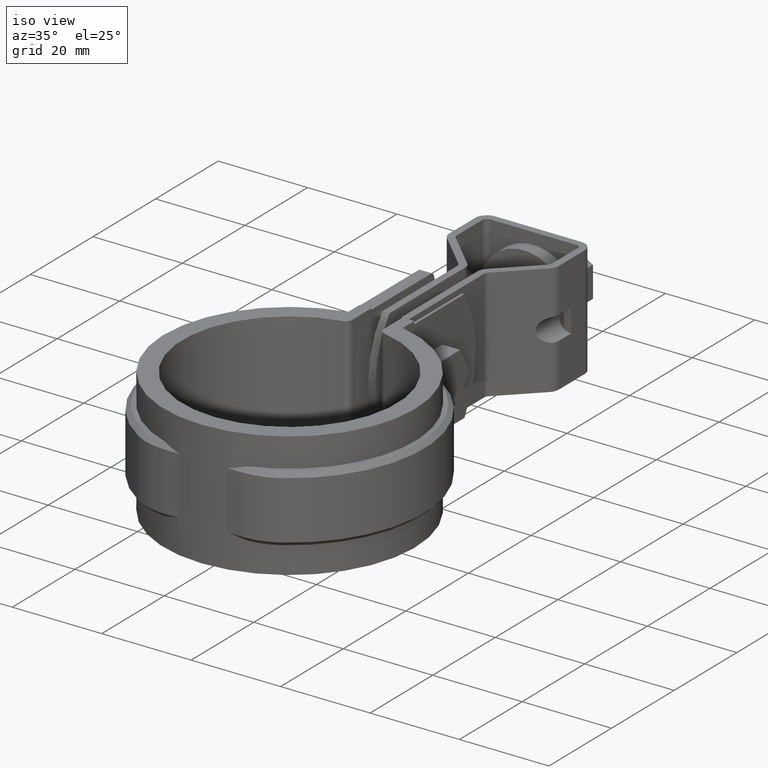
[diagram: clean part render]
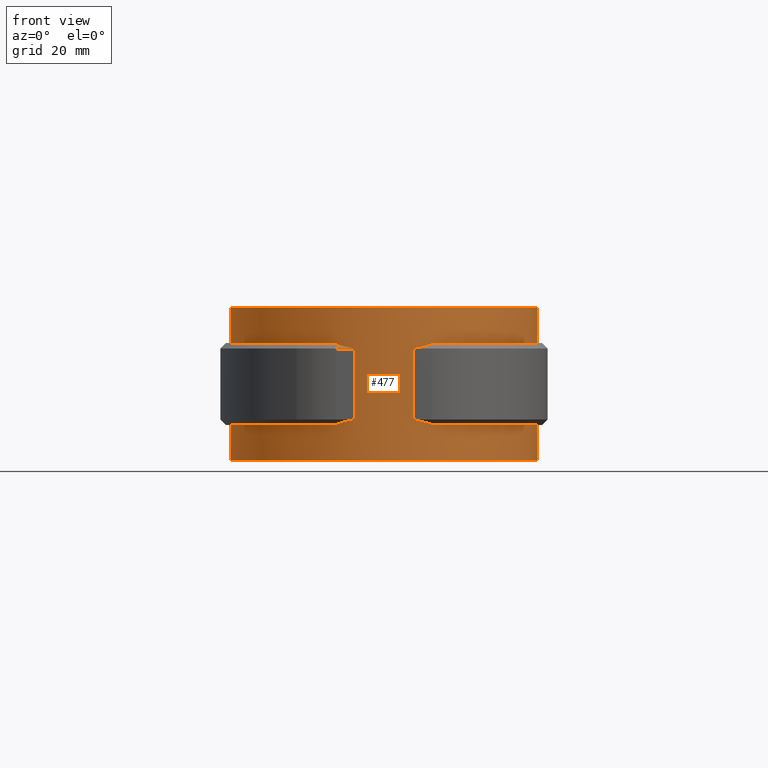
[diagram: tour spotlight — one face highlighted and labeled with its STEP entity id]
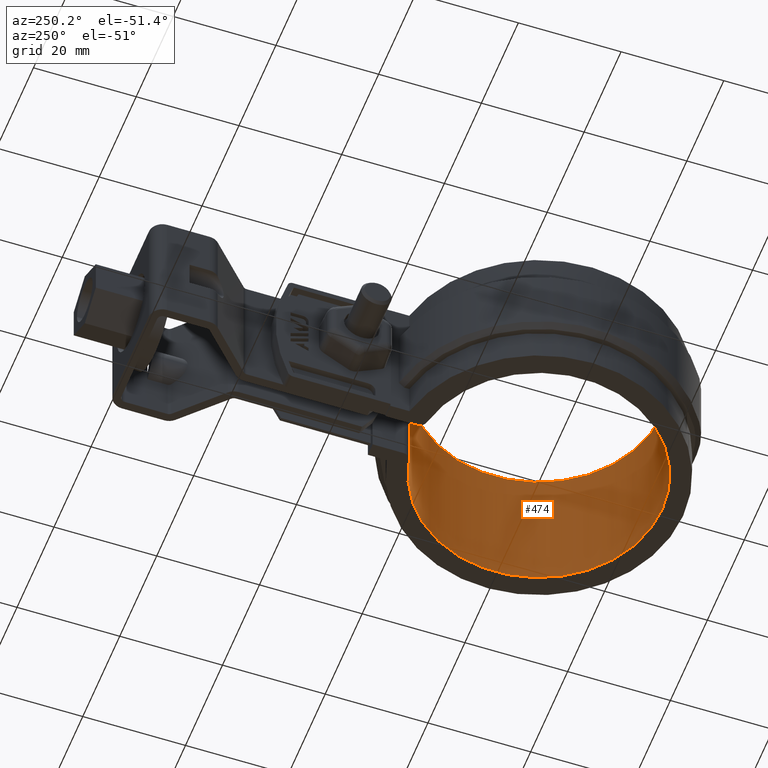
[diagram: tour spotlight — one face highlighted and labeled with its STEP entity id]
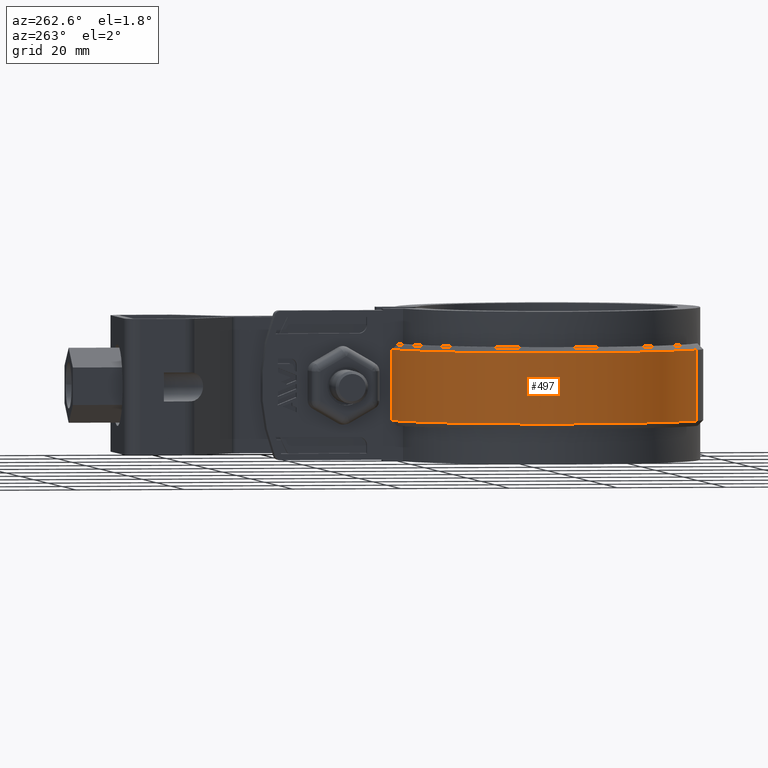
[diagram: tour spotlight — one face highlighted and labeled with its STEP entity id]
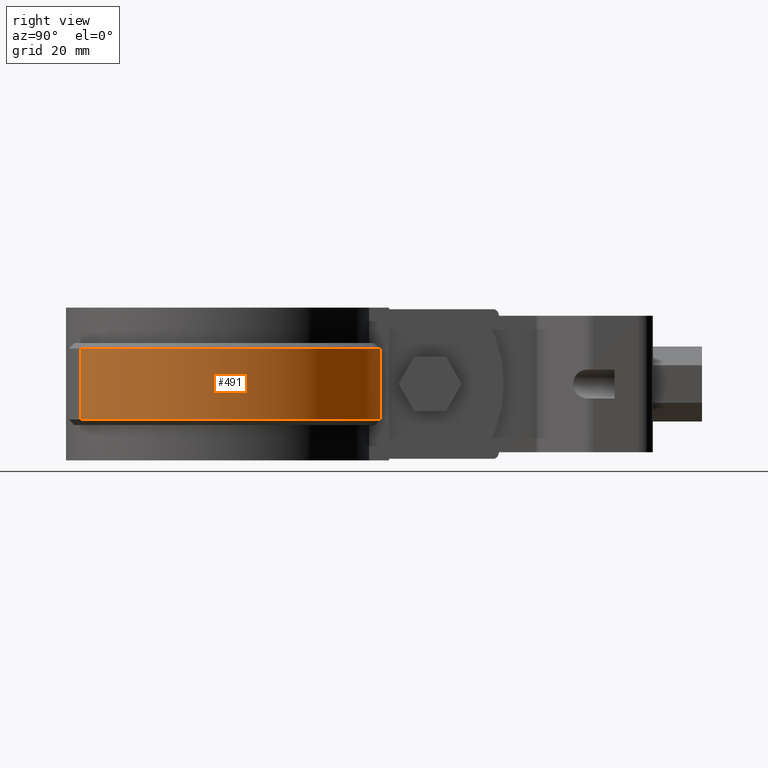
[diagram: tour spotlight — one face highlighted and labeled with its STEP entity id]
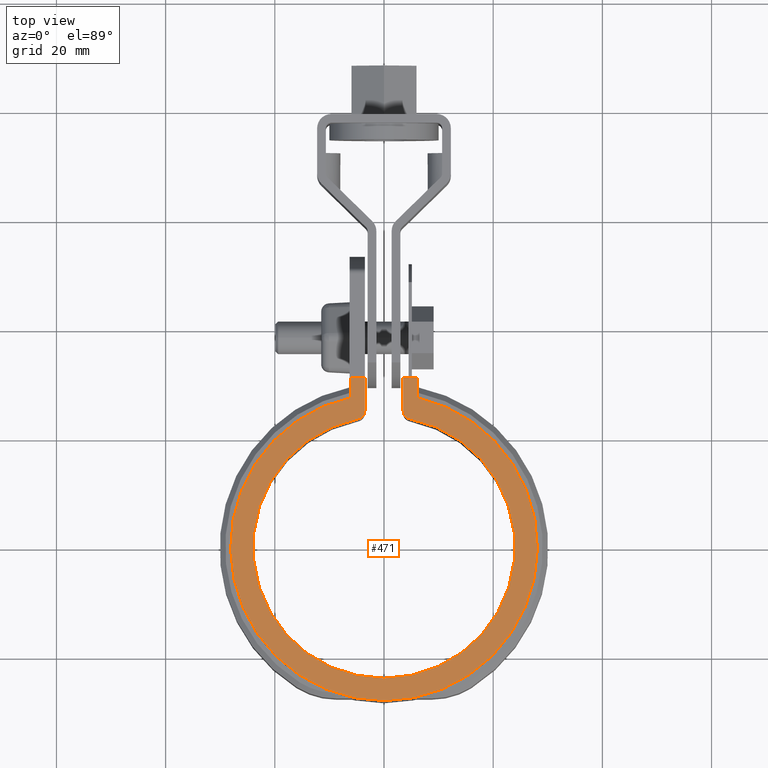
[diagram: tour spotlight — one face highlighted and labeled with its STEP entity id]
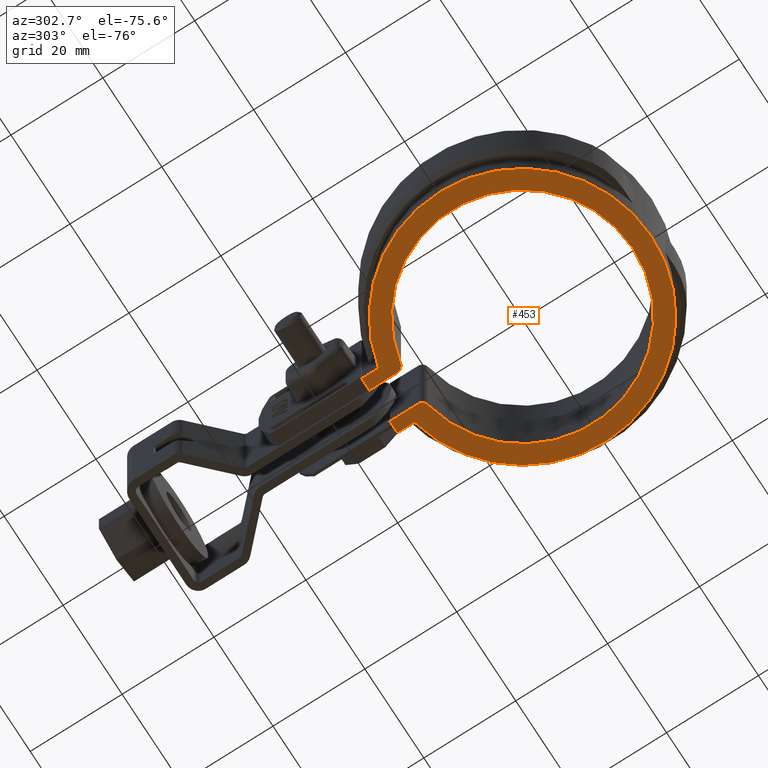
[diagram: tour spotlight — one face highlighted and labeled with its STEP entity id]
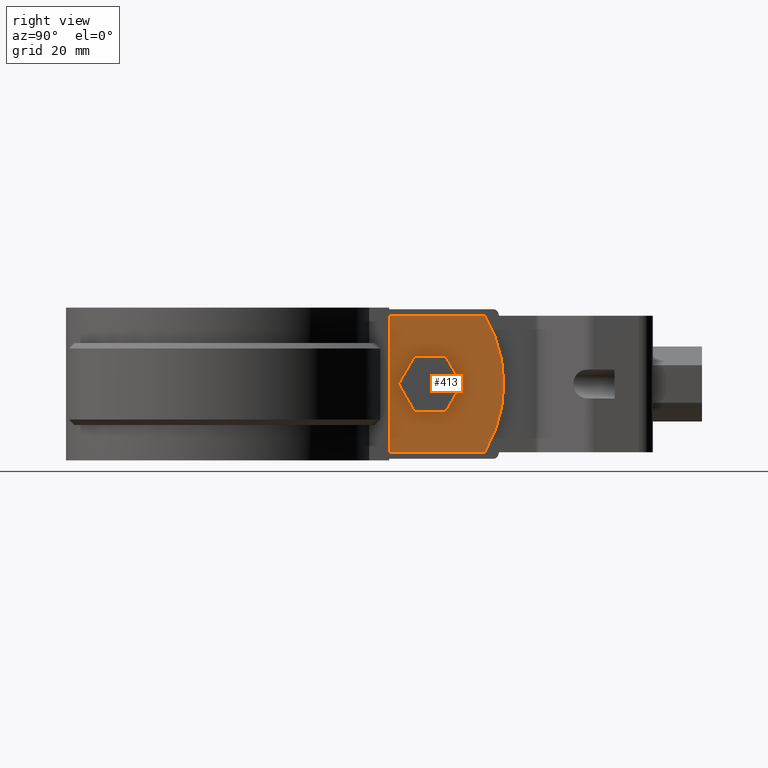
[diagram: tour spotlight — one face highlighted and labeled with its STEP entity id]
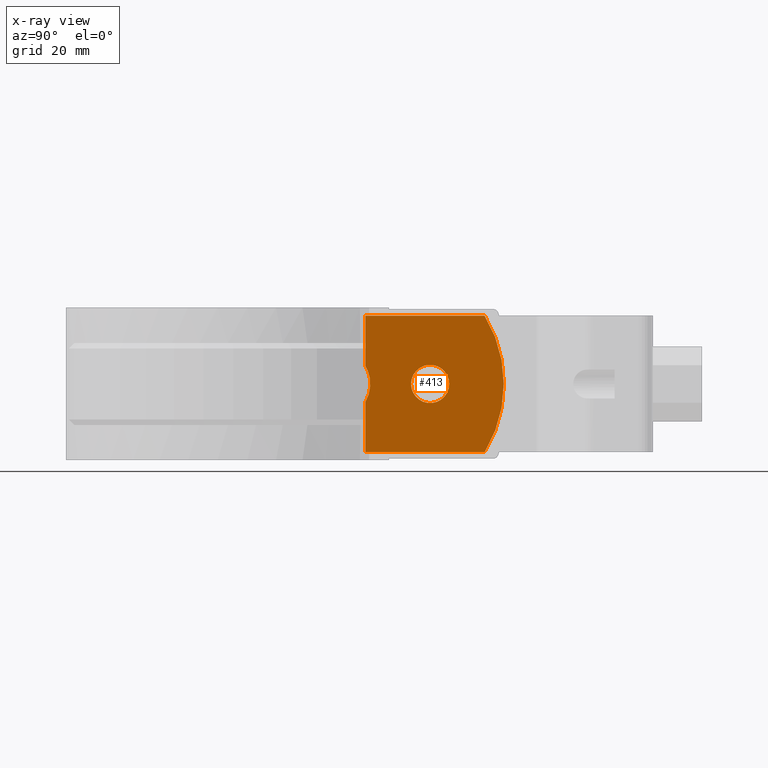
[diagram: x-ray of the same camera — body ghosted, this tour face saturated]
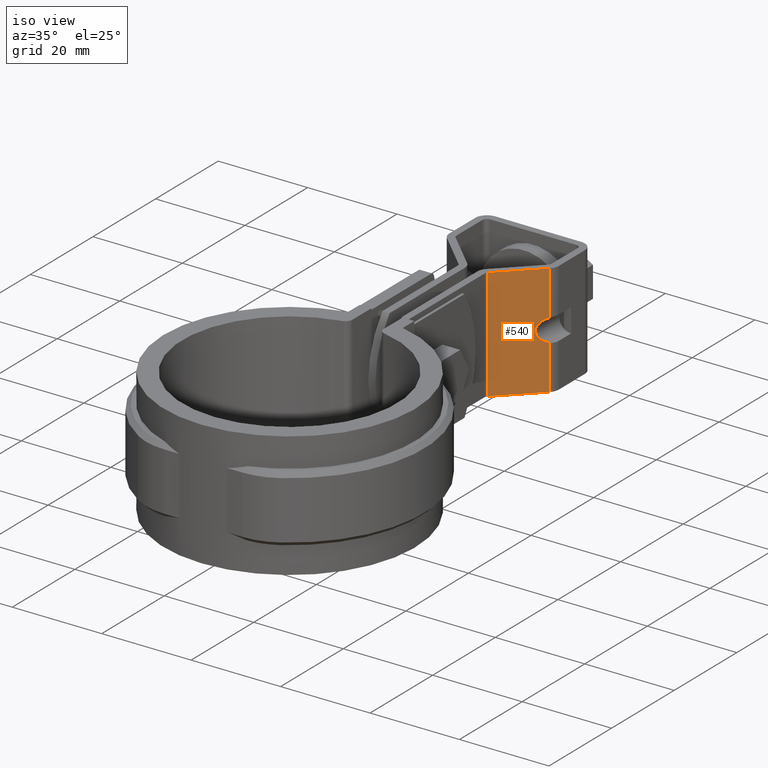
[diagram: tour spotlight — one face highlighted and labeled with its STEP entity id]
A machine part: a face-by-face anatomy tour. The part has 348 B-rep faces; the first image is the clean iso view, then the 8 largest visible faces are spotlighted one at a time (largest first), each with its STEP entity span.

Face 1 — front view, entity #477. In plain terms, the highlighted cylindrical surface (partial cylindrical patch) has radius 28.095 mm, axis along (0, 0, -1).
Definition (entity closure, byte-faithful):
#477 = ADVANCED_FACE( '', ( #948 ), #949, .T. );
#948 = FACE_OUTER_BOUND( '', #2292, .T. );
#949 = CYLINDRICAL_SURFACE( '', #2293, 28.0950000000000 );
#2292 = EDGE_LOOP( '', ( #4981, #4982, #4983, #4984, #4985, #4986, #4987, #4988, #4989, #4990, #4991, #4992, #4993, #4994, #4995, #4996, #4997, #4998, #4999, #5000 ) );
#2293 = AXIS2_PLACEMENT_3D( '', #5001, #5002, #5003 );
#4981 = ORIENTED_EDGE( '', *, *, #7275, .F. );
#4982 = ORIENTED_EDGE( '', *, *, #7276, .T. );
#4983 = ORIENTED_EDGE( '', *, *, #7274, .T. );
#4984 = ORIENTED_EDGE( '', *, *, #7277, .F. );
#4985 = ORIENTED_EDGE( '', *, *, #7278, .T. );
#4986 = ORIENTED_EDGE( '', *, *, #7279, .T. );
#4987 = ORIENTED_EDGE( '', *, *, #7280, .T. );
#4988 = ORIENTED_EDGE( '', *, *, #7263, .F. );
#4989 = ORIENTED_EDGE( '', *, *, #7233, .T. );
#4990 = ORIENTED_EDGE( '', *, *, #7262, .T. );
#4991 = ORIENTED_EDGE( '', *, *, #7281, .F. );
#4992 = ORIENTED_EDGE( '', *, *, #7282, .T. );
#4993 = ORIENTED_EDGE( '', *, *, #7283, .T. );
#4994 = ORIENTED_EDGE( '', *, *, #7284, .T. );
#4995 = ORIENTED_EDGE( '', *, *, #7285, .T. );
#4996 = ORIENTED_EDGE( '', *, *, #7286, .T. );
#4997 = ORIENTED_EDGE( '', *, *, #7287, .T. );
#4998 = ORIENTED_EDGE( '', *, *, #7256, .T. );
#4999 = ORIENTED_EDGE( '', *, *, #7251, .F. );
#5000 = ORIENTED_EDGE( '', *, *, #7269, .F. );
#5001 = CARTESIAN_POINT( '', ( 0.000000000000000, 0.000000000000000, -26.5000000000000 ) );
#5002 = DIRECTION( '', ( 0.000000000000000, 0.000000000000000, -1.00000000000000 ) );
#5003 = DIRECTION( '', ( -1.00000000000000, 6.07153216591882E-017, 0.000000000000000 ) );
#7233 = EDGE_CURVE( '', #8421, #8430, #8432, .T. );
#7251 = EDGE_CURVE( '', #8450, #8452, #8453, .T. );
#7256 = EDGE_CURVE( '', #8460, #8452, #8461, .T. );
#7262 = EDGE_CURVE( '', #8430, #8470, #8472, .T. );
#7263 = EDGE_CURVE( '', #8421, #8473, #8474, .T. );
#7269 = EDGE_CURVE( '', #8483, #8450, #8485, .T. );
#7274 = EDGE_CURVE( '', #8488, #8491, #8493, .T. );
#7275 = EDGE_CURVE( '', #8494, #8483, #8495, .T. );
#7276 = EDGE_CURVE( '', #8494, #8488, #8496, .F. );
#7277 = EDGE_CURVE( '', #8497, #8491, #8498, .T. );
#7278 = EDGE_CURVE( '', #8497, #8499, #8500, .F. );
#7279 = EDGE_CURVE( '', #8499, #8501, #8502, .T. );
#7280 = EDGE_CURVE( '', #8501, #8473, #8503, .T. );
#7281 = EDGE_CURVE( '', #8504, #8470, #8505, .T. );
#7282 = EDGE_CURVE( '', #8504, #8506, #8507, .F. );
#7283 = EDGE_CURVE( '', #8506, #8508, #8509, .F. );
#7284 = EDGE_CURVE( '', #8508, #8510, #8511, .T. );
#7285 = EDGE_CURVE( '', #8510, #8512, #8513, .T. );
#7286 = EDGE_CURVE( '', #8512, #8514, #8515, .T. );
#7287 = EDGE_CURVE( '', #8514, #8460, #8516, .T. );
#8421 = VERTEX_POINT( '', #11838 );
#8430 = VERTEX_POINT( '', #11849 );
#8432 = CIRCLE( '', #11852, 28.0950000000000 );
#8450 = VERTEX_POINT( '', #11912 );
#8452 = VERTEX_POINT( '', #11915 );
#8453 = CIRCLE( '', #11916, 28.0950000000000 );
#8460 = VERTEX_POINT( '', #11924 );
#8461 = LINE( '', #11925, #11926 );
#8470 = VERTEX_POINT( '', #11943 );
#8472 = LINE( '', #11946, #11947 );
#8473 = VERTEX_POINT( '', #11948 );
#8474 = LINE( '', #11949, #11950 );
#8483 = VERTEX_POINT( '', #11967 );
#8485 = LINE( '', #11970, #11971 );
#8488 = VERTEX_POINT( '', #11976 );
#8491 = VERTEX_POINT( '', #11980 );
#8493 = ELLIPSE( '', #11983, 39.7323300348721, 28.0950000000000 );
#8494 = VERTEX_POINT( '', #11984 );
#8495 = CIRCLE( '', #11985, 28.0950000000000 );
#8496 = B_SPLINE_CURVE_WITH_KNOTS( '', 3, ( #11986, #11987, #11988, #11989 ), .UNSPECIFIED., .F., .F., ( 4, 4 ), ( 0.00707183600593596, 0.00746660255924632 ), .UNSPECIFIED. );
#8497 = VERTEX_POINT( '', #11990 );
#8498 = LINE( '', #11991, #11992 );
#8499 = VERTEX_POINT( '', #11993 );
#8500 = ELLIPSE( '', #11994, 39.7323300348721, 28.0950000000000 );
#8501 = VERTEX_POINT( '', #11995 );
#8502 = B_SPLINE_CURVE_WITH_KNOTS( '', 3, ( #11996, #11997, #11998, #11999 ), .UNSPECIFIED., .F., .F., ( 4, 4 ), ( 0.00707183600593595, 0.00746660255924633 ), .UNSPECIFIED. );
#8503 = CIRCLE( '', #12000, 28.0950000000000 );
#8504 = VERTEX_POINT( '', #12001 );
#8505 = CIRCLE( '', #12002, 28.0950000000000 );
#8506 = VERTEX_POINT( '', #12003 );
#8507 = B_SPLINE_CURVE_WITH_KNOTS( '', 3, ( #12004, #12005, #12006, #12007 ), .UNSPECIFIED., .F., .F., ( 4, 4 ), ( 0.00707183600593599, 0.00746660255924633 ), .UNSPECIFIED. );
#8508 = VERTEX_POINT( '', #12008 );
#8509 = ELLIPSE( '', #12009, 39.7323300348721, 28.0950000000000 );
#8510 = VERTEX_POINT( '', #12010 );
#8511 = LINE( '', #12011, #12012 );
#8512 = VERTEX_POINT( '', #12013 );
#8513 = ELLIPSE( '', #12014, 39.7323300348721, 28.0950000000000 );
#8514 = VERTEX_POINT( '', #12015 );
#8515 = B_SPLINE_CURVE_WITH_KNOTS( '', 3, ( #12016, #12017, #12018, #12019 ), .UNSPECIFIED., .F., .F., ( 4, 4 ), ( 0.00707183600593600, 0.00746660255924633 ), .UNSPECIFIED. );
#8516 = CIRCLE( '', #12020, 28.0950000000000 );
#11838 = CARTESIAN_POINT( '', ( -6.09999999999999, 27.4247885133140, -26.5000000000000 ) );
#11849 = CARTESIAN_POINT( '', ( 6.10000000000002, 27.4247885133140, -26.5000000000000 ) );
#11852 = AXIS2_PLACEMENT_3D( '', #13885, #13886, #13887 );
#11912 = CARTESIAN_POINT( '', ( -6.09999999999999, 27.4247885133140, 1.50000000000000 ) );
#11915 = CARTESIAN_POINT( '', ( 6.10000000000002, 27.4247885133140, 1.50000000000000 ) );
#11916 = AXIS2_PLACEMENT_3D( '', #13898, #13899, #13900 );
#11924 = CARTESIAN_POINT( '', ( 6.10000000000002, 27.4247885133140, -5.00000000000000 ) );
#11925 = CARTESIAN_POINT( '', ( 6.10000000000002, 27.4247885133140, -26.5000000000000 ) );
#11926 = VECTOR( '', #13911, 1000.00000000000 );
#11943 = CARTESIAN_POINT( '', ( 6.10000000000002, 27.4247885133140, -20.0000000000000 ) );
#11946 = CARTESIAN_POINT( '', ( 6.10000000000002, 27.4247885133140, -26.5000000000000 ) );
#11947 = VECTOR( '', #13915, 1000.00000000000 );
#11948 = CARTESIAN_POINT( '', ( -6.10000000000000, 27.4247885133140, -20.0000000000000 ) );
#11949 = CARTESIAN_POINT( '', ( -6.09999999999999, 27.4247885133140, -26.5000000000000 ) );
#11950 = VECTOR( '', #13916, 1000.00000000000 );
#11967 = CARTESIAN_POINT( '', ( -6.10000000000000, 27.4247885133140, -5.00000000000000 ) );
#11970 = CARTESIAN_POINT( '', ( -6.09999999999999, 27.4247885133140, -26.5000000000000 ) );
#11971 = VECTOR( '', #13920, 1000.00000000000 );
#11976 = CARTESIAN_POINT( '', ( -8.75469159936546, -26.6961495350921, -5.11614953509214 ) );
#11980 = CARTESIAN_POINT( '', ( -5.35468253027197, -27.5800000000000, -6.00000000000000 ) );
#11983 = AXIS2_PLACEMENT_3D( '', #13925, #13926, #13927 );
#11984 = CARTESIAN_POINT( '', ( -9.11639408719635, -26.5748073153303, -5.00000000000000 ) );
#11985 = AXIS2_PLACEMENT_3D( '', #13928, #13929, #13930 );
#11986 = CARTESIAN_POINT( '', ( -8.75469159936545, -26.6961495350921, -5.11614953509214 ) );
#11987 = CARTESIAN_POINT( '', ( -8.87513408788739, -26.6566518224694, -5.07665182246944 ) );
#11988 = CARTESIAN_POINT( '', ( -8.99569783706166, -26.6162117390019, -5.03792258763495 ) );
#11989 = CARTESIAN_POINT( '', ( -9.11639408719635, -26.5748073153303, -5.00000000000001 ) );
#11990 = CARTESIAN_POINT( '', ( -5.35468253027197, -27.5800000000000, -19.0000000000000 ) );
#11991 = CARTESIAN_POINT( '', ( -5.35468253027197, -27.5800000000000, -20.0000000000000 ) );
#11992 = VECTOR( '', #13931, 1000.00000000000 );
#11993 = CARTESIAN_POINT( '', ( -8.75469159936545, -26.6961495350921, -19.8838504649079 ) );
#11994 = AXIS2_PLACEMENT_3D( '', #13932, #13933, #13934 );
#11995 = CARTESIAN_POINT( '', ( -9.11639408719635, -26.5748073153303, -20.0000000000000 ) );
#11996 = CARTESIAN_POINT( '', ( -8.75469159936545, -26.6961495350921, -19.8838504649079 ) );
#11997 = CARTESIAN_POINT( '', ( -8.87513408788739, -26.6566518224694, -19.9233481775306 ) );
#11998 = CARTESIAN_POINT( '', ( -8.99569783706166, -26.6162117390019, -19.9620774123650 ) );
#11999 = CARTESIAN_POINT( '', ( -9.11639408719635, -26.5748073153303, -20.0000000000000 ) );
#12000 = AXIS2_PLACEMENT_3D( '', #13935, #13936, #13937 );
#12001 = CARTESIAN_POINT( '', ( 9.11639408719637, -26.5748073153303, -20.0000000000000 ) );
#12002 = AXIS2_PLACEMENT_3D( '', #13938, #13939, #13940 );
#12003 = CARTESIAN_POINT( '', ( 8.75469159936549, -26.6961495350921, -19.8838504649079 ) );
#12004 = CARTESIAN_POINT( '', ( 8.75469159936549, -26.6961495350921, -19.8838504649079 ) );
#12005 = CARTESIAN_POINT( '', ( 8.87513408788742, -26.6566518224694, -19.9233481775306 ) );
#12006 = CARTESIAN_POINT( '', ( 8.99569783706168, -26.6162117390019, -19.9620774123651 ) );
#12007 = CARTESIAN_POINT( '', ( 9.11639408719637, -26.5748073153303, -20.0000000000000 ) );
#12008 = CARTESIAN_POINT( '', ( 5.35468253027197, -27.5800000000000, -19.0000000000000 ) );
#12009 = AXIS2_PLACEMENT_3D( '', #13941, #13942, #13943 );
#12010 = CARTESIAN_POINT( '', ( 5.35468253027197, -27.5800000000000, -6.00000000000000 ) );
#12011 = CARTESIAN_POINT( '', ( 5.35468253027197, -27.5800000000000, -20.0000000000000 ) );
#12012 = VECTOR( '', #13944, 1000.00000000000 );
#12013 = CARTESIAN_POINT( '', ( 8.75469159936549, -26.6961495350921, -5.11614953509213 ) );
#12014 = AXIS2_PLACEMENT_3D( '', #13945, #13946, #13947 );
#12015 = CARTESIAN_POINT( '', ( 9.11639408719635, -26.5748073153303, -5.00000000000000 ) );
#12016 = CARTESIAN_POINT( '', ( 8.75469159936549, -26.6961495350921, -5.11614953509213 ) );
#12017 = CARTESIAN_POINT( '', ( 8.87513408788741, -26.6566518224694, -5.07665182246943 ) );
#12018 = CARTESIAN_POINT( '', ( 8.99569783706167, -26.6162117390019, -5.03792258763495 ) );
#12019 = CARTESIAN_POINT( '', ( 9.11639408719635, -26.5748073153303, -5.00000000000000 ) );
#12020 = AXIS2_PLACEMENT_3D( '', #13948, #13949, #13950 );
#13885 = CARTESIAN_POINT( '', ( 0.000000000000000, 0.000000000000000, -26.5000000000000 ) );
#13886 = DIRECTION( '', ( 0.000000000000000, 0.000000000000000, 1.00000000000000 ) );
#13887 = DIRECTION( '', ( 1.00000000000000, -6.07153216591882E-017, 0.000000000000000 ) );
#13898 = CARTESIAN_POINT( '', ( 0.000000000000000, 0.000000000000000, 1.50000000000000 ) );
#13899 = DIRECTION( '', ( 0.000000000000000, 0.000000000000000, 1.00000000000000 ) );
#13900 = DIRECTION( '', ( 1.00000000000000, -6.07153216591882E-017, 0.000000000000000 ) );
#13911 = DIRECTION( '', ( 0.000000000000000, 0.000000000000000, 1.00000000000000 ) );
#13915 = DIRECTION( '', ( 0.000000000000000, 0.000000000000000, 1.00000000000000 ) );
#13916 = DIRECTION( '', ( 0.000000000000000, 0.000000000000000, 1.00000000000000 ) );
#13920 = DIRECTION( '', ( 0.000000000000000, 0.000000000000000, 1.00000000000000 ) );
#13925 = CARTESIAN_POINT( '', ( 0.000000000000000, 0.000000000000000, 21.5800000000000 ) );
#13926 = DIRECTION( '', ( -1.96261557335472E-017, -0.707106781186547, 0.707106781186548 ) );
#13927 = DIRECTION( '', ( 1.96261557335472E-017, 0.707106781186548, 0.707106781186547 ) );
#13928 = CARTESIAN_POINT( '', ( 8.67361737988404E-016, 0.000000000000000, -5.00000000000000 ) );
#13929 = DIRECTION( '', ( 0.000000000000000, 0.000000000000000, -1.00000000000000 ) );
#13930 = DIRECTION( '', ( 1.00000000000000, 2.77555756156289E-017, 0.000000000000000 ) );
#13931 = DIRECTION( '', ( 0.000000000000000, 0.000000000000000, 1.00000000000000 ) );
#13932 = CARTESIAN_POINT( '', ( 0.000000000000000, 0.000000000000000, -46.5800000000000 ) );
#13933 = DIRECTION( '', ( 1.96261557335472E-017, 0.707106781186547, 0.707106781186548 ) );
#13934 = DIRECTION( '', ( -1.96261557335472E-017, -0.707106781186548, 0.707106781186547 ) );
#13935 = CARTESIAN_POINT( '', ( 8.67361737988404E-016, 0.000000000000000, -20.0000000000000 ) );
#13936 = DIRECTION( '', ( 0.000000000000000, 0.000000000000000, -1.00000000000000 ) );
#13937 = DIRECTION( '', ( 1.00000000000000, 2.77555756156289E-017, 0.000000000000000 ) );
#13938 = CARTESIAN_POINT( '', ( 8.67361737988404E-016, 0.000000000000000, -20.0000000000000 ) );
#13939 = DIRECTION( '', ( 0.000000000000000, 0.000000000000000, 1.00000000000000 ) );
#13940 = DIRECTION( '', ( 1.00000000000000, 2.77555756156289E-017, 0.000000000000000 ) );
#13941 = CARTESIAN_POINT( '', ( 0.000000000000000, 0.000000000000000, -46.5800000000000 ) );
#13942 = DIRECTION( '', ( 1.96261557335472E-017, 0.707106781186548, 0.707106781186547 ) );
#13943 = DIRECTION( '', ( -1.96261557335472E-017, -0.707106781186547, 0.707106781186548 ) );
#13944 = DIRECTION( '', ( 0.000000000000000, 0.000000000000000, 1.00000000000000 ) );
#13945 = CARTESIAN_POINT( '', ( 0.000000000000000, 0.000000000000000, 21.5800000000000 ) );
#13946 = DIRECTION( '', ( -1.96261557335472E-017, -0.707106781186547, 0.707106781186548 ) );
#13947 = DIRECTION( '', ( 1.96261557335472E-017, 0.707106781186548, 0.707106781186547 ) );
#13948 = CARTESIAN_POINT( '', ( 8.67361737988404E-016, 0.000000000000000, -5.00000000000000 ) );
#13949 = DIRECTION( '', ( 0.000000000000000, 0.000000000000000, 1.00000000000000 ) );
#13950 = DIRECTION( '', ( 1.00000000000000, 2.77555756156289E-017, 0.000000000000000 ) );

Face 2 — auxiliary view, entity #474. In plain terms, the highlighted cylindrical surface (partial cylindrical patch) has radius 24 mm, axis along (0, 0, -1).
Definition (entity closure, byte-faithful):
#474 = ADVANCED_FACE( '', ( #942 ), #943, .F. );
#942 = FACE_OUTER_BOUND( '', #2286, .T. );
#943 = CYLINDRICAL_SURFACE( '', #2287, 24.0000000000000 );
#2286 = EDGE_LOOP( '', ( #4953, #4954, #4955, #4956 ) );
#2287 = AXIS2_PLACEMENT_3D( '', #4957, #4958, #4959 );
#4953 = ORIENTED_EDGE( '', *, *, #7229, .F. );
#4954 = ORIENTED_EDGE( '', *, *, #7270, .T. );
#4955 = ORIENTED_EDGE( '', *, *, #7254, .T. );
#4956 = ORIENTED_EDGE( '', *, *, #7271, .T. );
#4957 = CARTESIAN_POINT( '', ( 6.93889390390723E-015, 0.000000000000000, -95.5915891932392 ) );
#4958 = DIRECTION( '', ( 0.000000000000000, 0.000000000000000, -1.00000000000000 ) );
#4959 = DIRECTION( '', ( -1.00000000000000, 0.000000000000000, 0.000000000000000 ) );
#7229 = EDGE_CURVE( '', #8423, #8425, #8426, .F. );
#7254 = EDGE_CURVE( '', #8457, #8455, #8458, .F. );
#7270 = EDGE_CURVE( '', #8423, #8457, #8486, .T. );
#7271 = EDGE_CURVE( '', #8455, #8425, #8487, .F. );
#8423 = VERTEX_POINT( '', #11841 );
#8425 = VERTEX_POINT( '', #11843 );
#8426 = CIRCLE( '', #11844, 24.0000000000000 );
#8455 = VERTEX_POINT( '', #11919 );
#8457 = VERTEX_POINT( '', #11921 );
#8458 = CIRCLE( '', #11922, 24.0000000000000 );
#8486 = LINE( '', #11972, #11973 );
#8487 = LINE( '', #11974, #11975 );
#11841 = CARTESIAN_POINT( '', ( -4.70588235294118, 23.5341171765647, -26.5000000000000 ) );
#11843 = CARTESIAN_POINT( '', ( 4.70588235294118, 23.5341171765647, -26.5000000000000 ) );
#11844 = AXIS2_PLACEMENT_3D( '', #13877, #13878, #13879 );
#11919 = CARTESIAN_POINT( '', ( 4.70588235294118, 23.5341171765647, 1.50000000000000 ) );
#11921 = CARTESIAN_POINT( '', ( -4.70588235294118, 23.5341171765647, 1.50000000000000 ) );
#11922 = AXIS2_PLACEMENT_3D( '', #13905, #13906, #13907 );
#11972 = CARTESIAN_POINT( '', ( -4.70588235294118, 23.5341171765647, -95.5915891932392 ) );
#11973 = VECTOR( '', #13921, 1000.00000000000 );
#11974 = CARTESIAN_POINT( '', ( 4.70588235294118, 23.5341171765647, -95.5915891932392 ) );
#11975 = VECTOR( '', #13922, 1000.00000000000 );
#13877 = CARTESIAN_POINT( '', ( 6.93889390390723E-015, 0.000000000000000, -26.5000000000000 ) );
#13878 = DIRECTION( '', ( 0.000000000000000, 0.000000000000000, -1.00000000000000 ) );
#13879 = DIRECTION( '', ( -1.00000000000000, 0.000000000000000, 0.000000000000000 ) );
#13905 = CARTESIAN_POINT( '', ( 6.93889390390723E-015, 0.000000000000000, 1.50000000000000 ) );
#13906 = DIRECTION( '', ( 0.000000000000000, 0.000000000000000, -1.00000000000000 ) );
#13907 = DIRECTION( '', ( -1.00000000000000, 0.000000000000000, 0.000000000000000 ) );
#13921 = DIRECTION( '', ( 0.000000000000000, 0.000000000000000, 1.00000000000000 ) );
#13922 = DIRECTION( '', ( 0.000000000000000, 0.000000000000000, 1.00000000000000 ) );

Face 3 — auxiliary view, entity #497. In plain terms, the highlighted cylindrical surface (partial cylindrical patch) has radius 30.095 mm, axis along (0, 0, -1).
Definition (entity closure, byte-faithful):
#497 = ADVANCED_FACE( '', ( #988 ), #989, .T. );
#988 = FACE_OUTER_BOUND( '', #2332, .T. );
#989 = CYLINDRICAL_SURFACE( '', #2333, 30.0950000000000 );
#2332 = EDGE_LOOP( '', ( #5137, #5138, #5139, #5140 ) );
#2333 = AXIS2_PLACEMENT_3D( '', #5141, #5142, #5143 );
#5137 = ORIENTED_EDGE( '', *, *, #7266, .F. );
#5138 = ORIENTED_EDGE( '', *, *, #7299, .T. );
#5139 = ORIENTED_EDGE( '', *, *, #7314, .T. );
#5140 = ORIENTED_EDGE( '', *, *, #7316, .T. );
#5141 = CARTESIAN_POINT( '', ( 8.67361737988404E-016, 0.000000000000000, -20.0000000000000 ) );
#5142 = DIRECTION( '', ( 0.000000000000000, 0.000000000000000, -1.00000000000000 ) );
#5143 = DIRECTION( '', ( 0.190592010331802, 0.981669336180815, 0.000000000000000 ) );
#7266 = EDGE_CURVE( '', #8477, #8479, #8480, .T. );
#7299 = EDGE_CURVE( '', #8477, #8528, #8534, .F. );
#7314 = EDGE_CURVE( '', #8528, #8553, #8554, .T. );
#7316 = EDGE_CURVE( '', #8553, #8479, #8556, .T. );
#8477 = VERTEX_POINT( '', #11954 );
#8479 = VERTEX_POINT( '', #11959 );
#8480 = LINE( '', #11960, #11961 );
#8528 = VERTEX_POINT( '', #12037 );
#8534 = CIRCLE( '', #12044, 30.0950000000000 );
#8553 = VERTEX_POINT( '', #12069 );
#8554 = LINE( '', #12070, #12071 );
#8556 = CIRCLE( '', #12073, 30.0950000000000 );
#11954 = CARTESIAN_POINT( '', ( -6.09999999999999, 29.4703075145137, -19.0000000000000 ) );
#11959 = CARTESIAN_POINT( '', ( -6.09999999999999, 29.4703075145137, -6.00000000000000 ) );
#11960 = CARTESIAN_POINT( '', ( -6.09999999999999, 29.4703075145137, -20.0000000000000 ) );
#11961 = VECTOR( '', #13918, 1000.00000000000 );
#12037 = CARTESIAN_POINT( '', ( -15.9728671526465, -25.5064019399818, -19.0000000000000 ) );
#12044 = AXIS2_PLACEMENT_3D( '', #13972, #13973, #13974 );
#12069 = CARTESIAN_POINT( '', ( -15.9728671526465, -25.5064019399818, -6.00000000000000 ) );
#12070 = CARTESIAN_POINT( '', ( -15.9728671526465, -25.5064019399818, -20.0000000000000 ) );
#12071 = VECTOR( '', #14005, 1000.00000000000 );
#12073 = AXIS2_PLACEMENT_3D( '', #14009, #14010, #14011 );
#13918 = DIRECTION( '', ( 0.000000000000000, 0.000000000000000, 1.00000000000000 ) );
#13972 = CARTESIAN_POINT( '', ( 8.67361737988404E-016, 0.000000000000000, -19.0000000000000 ) );
#13973 = DIRECTION( '', ( 0.000000000000000, 0.000000000000000, -1.00000000000000 ) );
#13974 = DIRECTION( '', ( -1.00000000000000, 0.000000000000000, 0.000000000000000 ) );
#14005 = DIRECTION( '', ( 0.000000000000000, 0.000000000000000, 1.00000000000000 ) );
#14009 = CARTESIAN_POINT( '', ( 8.67361737988404E-016, 0.000000000000000, -6.00000000000000 ) );
#14010 = DIRECTION( '', ( 0.000000000000000, 0.000000000000000, -1.00000000000000 ) );
#14011 = DIRECTION( '', ( -1.00000000000000, 0.000000000000000, 0.000000000000000 ) );

Face 4 — right view, entity #491. In plain terms, the highlighted cylindrical surface (partial cylindrical patch) has radius 30.095 mm, axis along (0, 0, -1).
Definition (entity closure, byte-faithful):
#491 = ADVANCED_FACE( '', ( #976 ), #977, .T. );
#976 = FACE_OUTER_BOUND( '', #2320, .T. );
#977 = CYLINDRICAL_SURFACE( '', #2321, 30.0950000000000 );
#2320 = EDGE_LOOP( '', ( #5095, #5096, #5097, #5098 ) );
#2321 = AXIS2_PLACEMENT_3D( '', #5099, #5100, #5101 );
#5095 = ORIENTED_EDGE( '', *, *, #7259, .T. );
#5096 = ORIENTED_EDGE( '', *, *, #7309, .T. );
#5097 = ORIENTED_EDGE( '', *, *, #7310, .F. );
#5098 = ORIENTED_EDGE( '', *, *, #7305, .T. );
#5099 = CARTESIAN_POINT( '', ( 8.67361737988404E-016, 0.000000000000000, -20.0000000000000 ) );
#5100 = DIRECTION( '', ( 0.000000000000000, 0.000000000000000, -1.00000000000000 ) );
#5101 = DIRECTION( '', ( 0.190592010331802, 0.981669336180815, 0.000000000000000 ) );
#7259 = EDGE_CURVE( '', #8466, #8464, #8467, .T. );
#7305 = EDGE_CURVE( '', #8539, #8466, #8543, .T. );
#7309 = EDGE_CURVE( '', #8464, #8519, #8547, .F. );
#7310 = EDGE_CURVE( '', #8539, #8519, #8548, .T. );
#8464 = VERTEX_POINT( '', #11930 );
#8466 = VERTEX_POINT( '', #11935 );
#8467 = LINE( '', #11936, #11937 );
#8519 = VERTEX_POINT( '', #12024 );
#8539 = VERTEX_POINT( '', #12051 );
#8543 = CIRCLE( '', #12056, 30.0950000000000 );
#8547 = CIRCLE( '', #12061, 30.0950000000000 );
#8548 = LINE( '', #12062, #12063 );
#11930 = CARTESIAN_POINT( '', ( 6.10000000000001, 29.4703075145137, -6.00000000000000 ) );
#11935 = CARTESIAN_POINT( '', ( 6.10000000000001, 29.4703075145137, -19.0000000000000 ) );
#11936 = CARTESIAN_POINT( '', ( 6.10000000000001, 29.4703075145137, -20.0000000000000 ) );
#11937 = VECTOR( '', #13913, 1000.00000000000 );
#12024 = CARTESIAN_POINT( '', ( 15.9728671526464, -25.5064019399818, -6.00000000000000 ) );
#12051 = CARTESIAN_POINT( '', ( 15.9728671526464, -25.5064019399818, -19.0000000000000 ) );
#12056 = AXIS2_PLACEMENT_3D( '', #13984, #13985, #13986 );
#12061 = AXIS2_PLACEMENT_3D( '', #13994, #13995, #13996 );
#12062 = CARTESIAN_POINT( '', ( 15.9728671526464, -25.5064019399818, -20.0000000000000 ) );
#12063 = VECTOR( '', #13997, 1000.00000000000 );
#13913 = DIRECTION( '', ( 0.000000000000000, 0.000000000000000, 1.00000000000000 ) );
#13984 = CARTESIAN_POINT( '', ( 8.67361737988404E-016, 0.000000000000000, -19.0000000000000 ) );
#13985 = DIRECTION( '', ( 0.000000000000000, 0.000000000000000, 1.00000000000000 ) );
#13986 = DIRECTION( '', ( 1.00000000000000, 0.000000000000000, 0.000000000000000 ) );
#13994 = CARTESIAN_POINT( '', ( 8.67361737988404E-016, 0.000000000000000, -6.00000000000000 ) );
#13995 = DIRECTION( '', ( 0.000000000000000, 0.000000000000000, 1.00000000000000 ) );
#13996 = DIRECTION( '', ( 1.00000000000000, 0.000000000000000, 0.000000000000000 ) );
#13997 = DIRECTION( '', ( 0.000000000000000, 0.000000000000000, 1.00000000000000 ) );

Face 5 — top view, entity #471. In plain terms, the highlighted planar face has unit normal (0, 0, -1).
Definition (entity closure, byte-faithful):
#471 = ADVANCED_FACE( '', ( #936 ), #937, .F. );
#936 = FACE_OUTER_BOUND( '', #2280, .T. );
#937 = PLANE( '', #2281 );
#2280 = EDGE_LOOP( '', ( #4914, #4915, #4916, #4917, #4918, #4919, #4920, #4921, #4922, #4923 ) );
#2281 = AXIS2_PLACEMENT_3D( '', #4924, #4925, #4926 );
#4914 = ORIENTED_EDGE( '', *, *, #7081, .F. );
#4915 = ORIENTED_EDGE( '', *, *, #7250, .T. );
#4916 = ORIENTED_EDGE( '', *, *, #7251, .T. );
#4917 = ORIENTED_EDGE( '', *, *, #7252, .T. );
#4918 = ORIENTED_EDGE( '', *, *, #7244, .F. );
#4919 = ORIENTED_EDGE( '', *, *, #7074, .T. );
#4920 = ORIENTED_EDGE( '', *, *, #7253, .T. );
#4921 = ORIENTED_EDGE( '', *, *, #7254, .F. );
#4922 = ORIENTED_EDGE( '', *, *, #7255, .T. );
#4923 = ORIENTED_EDGE( '', *, *, #7225, .T. );
#4924 = CARTESIAN_POINT( '', ( -6.50000000000000, 26.7207784317748, 1.50000000000000 ) );
#4925 = DIRECTION( '', ( 0.000000000000000, 0.000000000000000, -1.00000000000000 ) );
#4926 = DIRECTION( '', ( 1.00000000000000, -7.93312968858326E-017, 0.000000000000000 ) );
#7074 = EDGE_CURVE( '', #8154, #8155, #8156, .T. );
#7081 = EDGE_CURVE( '', #8167, #8163, #8169, .T. );
#7225 = EDGE_CURVE( '', #8418, #8163, #8419, .T. );
#7244 = EDGE_CURVE( '', #8154, #8443, #8444, .T. );
#7250 = EDGE_CURVE( '', #8167, #8450, #8451, .T. );
#7251 = EDGE_CURVE( '', #8450, #8452, #8453, .T. );
#7252 = EDGE_CURVE( '', #8452, #8443, #8454, .T. );
#7253 = EDGE_CURVE( '', #8155, #8455, #8456, .F. );
#7254 = EDGE_CURVE( '', #8457, #8455, #8458, .F. );
#7255 = EDGE_CURVE( '', #8457, #8418, #8459, .F. );
#8154 = VERTEX_POINT( '', #10684 );
#8155 = VERTEX_POINT( '', #10685 );
#8156 = LINE( '', #10686, #10687 );
#8163 = VERTEX_POINT( '', #10697 );
#8167 = VERTEX_POINT( '', #10703 );
#8169 = LINE( '', #10706, #10707 );
#8418 = VERTEX_POINT( '', #11833 );
#8419 = LINE( '', #11834, #11835 );
#8443 = VERTEX_POINT( '', #11899 );
#8444 = LINE( '', #11900, #11901 );
#8450 = VERTEX_POINT( '', #11912 );
#8451 = LINE( '', #11913, #11914 );
#8452 = VERTEX_POINT( '', #11915 );
#8453 = CIRCLE( '', #11916, 28.0950000000000 );
#8454 = LINE( '', #11917, #11918 );
#8455 = VERTEX_POINT( '', #11919 );
#8456 = CIRCLE( '', #11920, 1.50000000000000 );
#8457 = VERTEX_POINT( '', #11921 );
#8458 = CIRCLE( '', #11922, 24.0000000000000 );
#8459 = CIRCLE( '', #11923, 1.50000000000000 );
#10684 = CARTESIAN_POINT( '', ( 3.50000000000001, 31.0998007960208, 1.50000000000000 ) );
#10685 = CARTESIAN_POINT( '', ( 3.50000000000000, 25.0049995001000, 1.50000000000000 ) );
#10686 = CARTESIAN_POINT( '', ( 3.50000000000000, 31.1900000000000, 1.50000000000000 ) );
#10687 = VECTOR( '', #13737, 1000.00000000000 );
#10697 = CARTESIAN_POINT( '', ( -3.50000000000000, 31.0998007960208, 1.50000000000000 ) );
#10703 = CARTESIAN_POINT( '', ( -6.09999999999999, 31.0998007960208, 1.50000000000000 ) );
#10706 = CARTESIAN_POINT( '', ( -6.50000000000000, 31.0998007960208, 1.50000000000000 ) );
#10707 = VECTOR( '', #13744, 1000.00000000000 );
#11833 = CARTESIAN_POINT( '', ( -3.50000000000000, 25.0049995001000, 1.50000000000000 ) );
#11834 = CARTESIAN_POINT( '', ( -3.50000000000000, 23.7383660979436, 1.50000000000000 ) );
#11835 = VECTOR( '', #13871, 1000.00000000000 );
#11899 = CARTESIAN_POINT( '', ( 6.10000000000001, 31.0998007960208, 1.50000000000000 ) );
#11900 = CARTESIAN_POINT( '', ( -6.50000000000000, 31.0998007960208, 1.50000000000000 ) );
#11901 = VECTOR( '', #13891, 1000.00000000000 );
#11912 = CARTESIAN_POINT( '', ( -6.09999999999999, 27.4247885133140, 1.50000000000000 ) );
#11913 = CARTESIAN_POINT( '', ( -6.09999999999999, 31.1900000000000, 1.50000000000000 ) );
#11914 = VECTOR( '', #13897, 1000.00000000000 );
#11915 = CARTESIAN_POINT( '', ( 6.10000000000002, 27.4247885133140, 1.50000000000000 ) );
#11916 = AXIS2_PLACEMENT_3D( '', #13898, #13899, #13900 );
#11917 = CARTESIAN_POINT( '', ( 6.10000000000001, 27.4247885133140, 1.50000000000000 ) );
#11918 = VECTOR( '', #13901, 1000.00000000000 );
#11919 = CARTESIAN_POINT( '', ( 4.70588235294118, 23.5341171765647, 1.50000000000000 ) );
#11920 = AXIS2_PLACEMENT_3D( '', #13902, #13903, #13904 );
#11921 = CARTESIAN_POINT( '', ( -4.70588235294118, 23.5341171765647, 1.50000000000000 ) );
#11922 = AXIS2_PLACEMENT_3D( '', #13905, #13906, #13907 );
#11923 = AXIS2_PLACEMENT_3D( '', #13908, #13909, #13910 );
#13737 = DIRECTION( '', ( -6.07153216591882E-017, -1.00000000000000, 0.000000000000000 ) );
#13744 = DIRECTION( '', ( 1.00000000000000, 0.000000000000000, 0.000000000000000 ) );
#13871 = DIRECTION( '', ( 6.07153216591882E-017, 1.00000000000000, 0.000000000000000 ) );
#13891 = DIRECTION( '', ( 1.00000000000000, 0.000000000000000, 0.000000000000000 ) );
#13897 = DIRECTION( '', ( -6.07153216591882E-017, -1.00000000000000, 0.000000000000000 ) );
#13898 = CARTESIAN_POINT( '', ( 0.000000000000000, 0.000000000000000, 1.50000000000000 ) );
#13899 = DIRECTION( '', ( 0.000000000000000, 0.000000000000000, 1.00000000000000 ) );
#13900 = DIRECTION( '', ( 1.00000000000000, -6.07153216591882E-017, 0.000000000000000 ) );
#13901 = DIRECTION( '', ( 6.07153216591882E-017, 1.00000000000000, 0.000000000000000 ) );
#13902 = CARTESIAN_POINT( '', ( 5.00000000000000, 25.0049995001000, 1.50000000000000 ) );
#13903 = DIRECTION( '', ( 0.000000000000000, 0.000000000000000, -1.00000000000000 ) );
#13904 = DIRECTION( '', ( -1.00000000000000, 0.000000000000000, 0.000000000000000 ) );
#13905 = CARTESIAN_POINT( '', ( 6.93889390390723E-015, 0.000000000000000, 1.50000000000000 ) );
#13906 = DIRECTION( '', ( 0.000000000000000, 0.000000000000000, -1.00000000000000 ) );
#13907 = DIRECTION( '', ( -1.00000000000000, 0.000000000000000, 0.000000000000000 ) );
#13908 = CARTESIAN_POINT( '', ( -5.00000000000000, 25.0049995001000, 1.50000000000000 ) );
#13909 = DIRECTION( '', ( 0.000000000000000, 0.000000000000000, -1.00000000000000 ) );
#13910 = DIRECTION( '', ( -1.00000000000000, 0.000000000000000, 0.000000000000000 ) );

Face 6 — auxiliary view, entity #453. In plain terms, the highlighted planar face has unit normal (0, 0, -1).
Definition (entity closure, byte-faithful):
#453 = ADVANCED_FACE( '', ( #899 ), #900, .T. );
#899 = FACE_OUTER_BOUND( '', #2162, .T. );
#900 = PLANE( '', #2163 );
#2162 = EDGE_LOOP( '', ( #4594, #4595, #4596, #4597, #4598, #4599, #4600, #4601, #4602, #4603 ) );
#2163 = AXIS2_PLACEMENT_3D( '', #4604, #4605, #4606 );
#4594 = ORIENTED_EDGE( '', *, *, #7227, .F. );
#4595 = ORIENTED_EDGE( '', *, *, #7079, .T. );
#4596 = ORIENTED_EDGE( '', *, *, #7224, .F. );
#4597 = ORIENTED_EDGE( '', *, *, #7228, .T. );
#4598 = ORIENTED_EDGE( '', *, *, #7229, .T. );
#4599 = ORIENTED_EDGE( '', *, *, #7230, .T. );
#4600 = ORIENTED_EDGE( '', *, *, #7076, .F. );
#4601 = ORIENTED_EDGE( '', *, *, #7231, .T. );
#4602 = ORIENTED_EDGE( '', *, *, #7232, .F. );
#4603 = ORIENTED_EDGE( '', *, *, #7233, .F. );
#4604 = CARTESIAN_POINT( '', ( -6.50000000000000, 26.7207784317748, -26.5000000000000 ) );
#4605 = DIRECTION( '', ( 0.000000000000000, 0.000000000000000, -1.00000000000000 ) );
#4606 = DIRECTION( '', ( 1.00000000000000, -7.93312968858326E-017, 0.000000000000000 ) );
#7076 = EDGE_CURVE( '', #8157, #8159, #8160, .T. );
#7079 = EDGE_CURVE( '', #8165, #8162, #8166, .T. );
#7224 = EDGE_CURVE( '', #8416, #8162, #8417, .T. );
#7227 = EDGE_CURVE( '', #8165, #8421, #8422, .T. );
#7228 = EDGE_CURVE( '', #8416, #8423, #8424, .T. );
#7229 = EDGE_CURVE( '', #8423, #8425, #8426, .F. );
#7230 = EDGE_CURVE( '', #8425, #8159, #8427, .T. );
#7231 = EDGE_CURVE( '', #8157, #8428, #8429, .T. );
#7232 = EDGE_CURVE( '', #8430, #8428, #8431, .T. );
#7233 = EDGE_CURVE( '', #8421, #8430, #8432, .T. );
#8157 = VERTEX_POINT( '', #10688 );
#8159 = VERTEX_POINT( '', #10691 );
#8160 = LINE( '', #10692, #10693 );
#8162 = VERTEX_POINT( '', #10696 );
#8165 = VERTEX_POINT( '', #10700 );
#8166 = LINE( '', #10701, #10702 );
#8416 = VERTEX_POINT( '', #11830 );
#8417 = LINE( '', #11831, #11832 );
#8421 = VERTEX_POINT( '', #11838 );
#8422 = LINE( '', #11839, #11840 );
#8423 = VERTEX_POINT( '', #11841 );
#8424 = CIRCLE( '', #11842, 1.50000000000000 );
#8425 = VERTEX_POINT( '', #11843 );
#8426 = CIRCLE( '', #11844, 24.0000000000000 );
#8427 = CIRCLE( '', #11845, 1.50000000000000 );
#8428 = VERTEX_POINT( '', #11846 );
#8429 = LINE( '', #11847, #11848 );
#8430 = VERTEX_POINT( '', #11849 );
#8431 = LINE( '', #11850, #11851 );
#8432 = CIRCLE( '', #11852, 28.0950000000000 );
#10688 = CARTESIAN_POINT( '', ( 3.50000000000001, 31.0998007960208, -26.5000000000000 ) );
#10691 = CARTESIAN_POINT( '', ( 3.50000000000000, 25.0049995001000, -26.5000000000000 ) );
#10692 = CARTESIAN_POINT( '', ( 3.50000000000000, 31.1900000000000, -26.5000000000000 ) );
#10693 = VECTOR( '', #13739, 1000.00000000000 );
#10696 = CARTESIAN_POINT( '', ( -3.50000000000000, 31.0998007960208, -26.5000000000000 ) );
#10700 = CARTESIAN_POINT( '', ( -6.09999999999999, 31.0998007960208, -26.5000000000000 ) );
#10701 = CARTESIAN_POINT( '', ( -6.50000000000000, 31.0998007960208, -26.5000000000000 ) );
#10702 = VECTOR( '', #13742, 1000.00000000000 );
#11830 = CARTESIAN_POINT( '', ( -3.50000000000000, 25.0049995001000, -26.5000000000000 ) );
#11831 = CARTESIAN_POINT( '', ( -3.50000000000000, 23.7383660979436, -26.5000000000000 ) );
#11832 = VECTOR( '', #13870, 1000.00000000000 );
#11838 = CARTESIAN_POINT( '', ( -6.09999999999999, 27.4247885133140, -26.5000000000000 ) );
#11839 = CARTESIAN_POINT( '', ( -6.09999999999999, 31.1900000000000, -26.5000000000000 ) );
#11840 = VECTOR( '', #13873, 1000.00000000000 );
#11841 = CARTESIAN_POINT( '', ( -4.70588235294118, 23.5341171765647, -26.5000000000000 ) );
#11842 = AXIS2_PLACEMENT_3D( '', #13874, #13875, #13876 );
#11843 = CARTESIAN_POINT( '', ( 4.70588235294118, 23.5341171765647, -26.5000000000000 ) );
#11844 = AXIS2_PLACEMENT_3D( '', #13877, #13878, #13879 );
#11845 = AXIS2_PLACEMENT_3D( '', #13880, #13881, #13882 );
#11846 = CARTESIAN_POINT( '', ( 6.10000000000001, 31.0998007960208, -26.5000000000000 ) );
#11847 = CARTESIAN_POINT( '', ( -6.50000000000000, 31.0998007960208, -26.5000000000000 ) );
#11848 = VECTOR( '', #13883, 1000.00000000000 );
#11849 = CARTESIAN_POINT( '', ( 6.10000000000002, 27.4247885133140, -26.5000000000000 ) );
#11850 = CARTESIAN_POINT( '', ( 6.10000000000001, 27.4247885133140, -26.5000000000000 ) );
#11851 = VECTOR( '', #13884, 1000.00000000000 );
#11852 = AXIS2_PLACEMENT_3D( '', #13885, #13886, #13887 );
#13739 = DIRECTION( '', ( -6.07153216591882E-017, -1.00000000000000, 0.000000000000000 ) );
#13742 = DIRECTION( '', ( 1.00000000000000, 0.000000000000000, 0.000000000000000 ) );
#13870 = DIRECTION( '', ( 6.07153216591882E-017, 1.00000000000000, 0.000000000000000 ) );
#13873 = DIRECTION( '', ( -6.07153216591882E-017, -1.00000000000000, 0.000000000000000 ) );
#13874 = CARTESIAN_POINT( '', ( -5.00000000000000, 25.0049995001000, -26.5000000000000 ) );
#13875 = DIRECTION( '', ( 0.000000000000000, 0.000000000000000, -1.00000000000000 ) );
#13876 = DIRECTION( '', ( -1.00000000000000, 0.000000000000000, 0.000000000000000 ) );
#13877 = CARTESIAN_POINT( '', ( 6.93889390390723E-015, 0.000000000000000, -26.5000000000000 ) );
#13878 = DIRECTION( '', ( 0.000000000000000, 0.000000000000000, -1.00000000000000 ) );
#13879 = DIRECTION( '', ( -1.00000000000000, 0.000000000000000, 0.000000000000000 ) );
#13880 = CARTESIAN_POINT( '', ( 5.00000000000000, 25.0049995001000, -26.5000000000000 ) );
#13881 = DIRECTION( '', ( 0.000000000000000, 0.000000000000000, -1.00000000000000 ) );
#13882 = DIRECTION( '', ( -1.00000000000000, 0.000000000000000, 0.000000000000000 ) );
#13883 = DIRECTION( '', ( 1.00000000000000, 0.000000000000000, 0.000000000000000 ) );
#13884 = DIRECTION( '', ( 6.07153216591882E-017, 1.00000000000000, 0.000000000000000 ) );
#13885 = CARTESIAN_POINT( '', ( 0.000000000000000, 0.000000000000000, -26.5000000000000 ) );
#13886 = DIRECTION( '', ( 0.000000000000000, 0.000000000000000, 1.00000000000000 ) );
#13887 = DIRECTION( '', ( 1.00000000000000, -6.07153216591882E-017, 0.000000000000000 ) );

Face 7 — right view, entity #413. An x-ray twin of the same camera follows (body ghosted, this face saturated) — the face is partly hidden behind the body. In plain terms, the highlighted planar face has unit normal (-1, 0, 0).
Definition (entity closure, byte-faithful):
#413 = ADVANCED_FACE( '', ( #816, #817 ), #818, .F. );
#816 = FACE_BOUND( '', #1860, .T. );
#817 = FACE_OUTER_BOUND( '', #1861, .T. );
#818 = PLANE( '', #1862 );
#1860 = EDGE_LOOP( '', ( #3891 ) );
#1861 = EDGE_LOOP( '', ( #3892, #3893, #3894, #3895, #3896, #3897 ) );
#1862 = AXIS2_PLACEMENT_3D( '', #3898, #3899, #3900 );
#3891 = ORIENTED_EDGE( '', *, *, #7072, .F. );
#3892 = ORIENTED_EDGE( '', *, *, #6960, .F. );
#3893 = ORIENTED_EDGE( '', *, *, #7057, .T. );
#3894 = ORIENTED_EDGE( '', *, *, #7062, .T. );
#3895 = ORIENTED_EDGE( '', *, *, #7073, .F. );
#3896 = ORIENTED_EDGE( '', *, *, #6936, .F. );
#3897 = ORIENTED_EDGE( '', *, *, #7034, .T. );
#3898 = CARTESIAN_POINT( '', ( 5.10000000000000, 26.7207784317748, 0.000000000000000 ) );
#3899 = DIRECTION( '', ( -1.00000000000000, 6.12303176911189E-017, 0.000000000000000 ) );
#3900 = DIRECTION( '', ( 6.12303176911189E-017, 1.00000000000000, 0.000000000000000 ) );
#6936 = EDGE_CURVE( '', #7928, #7930, #7931, .T. );
#6960 = EDGE_CURVE( '', #7973, #7967, #7975, .T. );
#7034 = EDGE_CURVE( '', #7928, #7967, #8099, .T. );
#7057 = EDGE_CURVE( '', #7973, #8131, #8133, .T. );
#7062 = EDGE_CURVE( '', #8131, #8139, #8141, .T. );
#7072 = EDGE_CURVE( '', #8151, #8151, #8152, .F. );
#7073 = EDGE_CURVE( '', #7930, #8139, #8153, .T. );
#7928 = VERTEX_POINT( '', #9691 );
#7930 = VERTEX_POINT( '', #9693 );
#7931 = LINE( '', #9694, #9695 );
#7967 = VERTEX_POINT( '', #9802 );
#7973 = VERTEX_POINT( '', #9869 );
#7975 = B_SPLINE_CURVE_WITH_KNOTS( '', 3, ( #9884, #9885, #9886, #9887, #9888, #9889, #9890, #9891, #9892, #9893, #9894, #9895, #9896, #9897, #9898, #9899 ), .UNSPECIFIED., .F., .F., ( 4, 2, 2, 2, 2, 2, 2, 4 ), ( 7.75791922889773E-018, 0.00174299968865410, 0.00261449953298114, 0.00348599937730818, 0.00435749922163523, 0.00522899906596227, 0.00610049891028931, 0.00697199875461635 ), .UNSPECIFIED. );
#8099 = LINE( '', #10550, #10551 );
#8131 = VERTEX_POINT( '', #10634 );
#8133 = LINE( '', #10636, #10637 );
#8139 = VERTEX_POINT( '', #10644 );
#8141 = LINE( '', #10647, #10648 );
#8151 = VERTEX_POINT( '', #10681 );
#8152 = CIRCLE( '', #10682, 3.50000000000000 );
#8153 = CIRCLE( '', #10683, 24.0000000000000 );
#9691 = CARTESIAN_POINT( '', ( 5.10000000000000, 26.7207784317748, 0.000000000000000 ) );
#9693 = CARTESIAN_POINT( '', ( 5.10000000000001, 48.5876020445702, 2.56371023774629E-031 ) );
#9694 = CARTESIAN_POINT( '', ( 5.10000000000000, 26.7207784317748, 0.000000000000000 ) );
#9695 = VECTOR( '', #13610, 1000.00000000000 );
#9802 = CARTESIAN_POINT( '', ( 5.10000000000000, 26.7207784317748, -9.15908806570543 ) );
#9869 = CARTESIAN_POINT( '', ( 5.10000000000000, 26.7207784317748, -15.8409119342945 ) );
#9884 = CARTESIAN_POINT( '', ( 5.10000000000000, 26.7207784317748, -15.8409119342945 ) );
#9885 = CARTESIAN_POINT( '', ( 5.10000000000000, 27.0205294773263, -15.3333512773837 ) );
#9886 = CARTESIAN_POINT( '', ( 5.10000000000001, 27.2452219664692, -14.7972135448963 ) );
#9887 = CARTESIAN_POINT( '', ( 5.10000000000001, 27.4761585568552, -13.9526106327560 ) );
#9888 = CARTESIAN_POINT( '', ( 5.10000000000000, 27.5352513861619, -13.6623094566119 ) );
#9889 = CARTESIAN_POINT( '', ( 5.10000000000000, 27.6133924014708, -13.0833120521819 ) );
#9890 = CARTESIAN_POINT( '', ( 5.10000000000000, 27.6330516047013, -12.7933013992658 ) );
#9891 = CARTESIAN_POINT( '', ( 5.10000000000000, 27.6333018369987, -12.2122497155302 ) );
#9892 = CARTESIAN_POINT( '', ( 5.10000000000001, 27.6138904822865, -11.9212086218413 ) );
#9893 = CARTESIAN_POINT( '', ( 5.10000000000001, 27.5354151196663, -11.3380806416016 ) );
#9894 = CARTESIAN_POINT( '', ( 5.10000000000001, 27.4768801280401, -11.0507725892134 ) );
#9895 = CARTESIAN_POINT( '', ( 5.10000000000001, 27.3238218400565, -10.4895163350209 ) );
#9896 = CARTESIAN_POINT( '', ( 5.10000000000000, 27.2291784708624, -10.2146970874867 ) );
#9897 = CARTESIAN_POINT( '', ( 5.09999999999999, 27.0029791058853, -9.67689575353211 ) );
#9898 = CARTESIAN_POINT( '', ( 5.10000000000000, 26.8706507873209, -9.41286303117333 ) );
#9899 = CARTESIAN_POINT( '', ( 5.10000000000000, 26.7207784317748, -9.15908806570546 ) );
#10550 = CARTESIAN_POINT( '', ( 5.10000000000000, 26.7207784317748, 0.000000000000000 ) );
#10551 = VECTOR( '', #13681, 1000.00000000000 );
#10634 = CARTESIAN_POINT( '', ( 5.10000000000000, 26.7207784317748, -25.0000000000000 ) );
#10636 = CARTESIAN_POINT( '', ( 5.10000000000000, 26.7207784317748, 0.000000000000000 ) );
#10637 = VECTOR( '', #13710, 1000.00000000000 );
#10644 = CARTESIAN_POINT( '', ( 5.10000000000001, 48.5876020445702, -25.0000000000000 ) );
#10647 = CARTESIAN_POINT( '', ( 5.10000000000000, 26.7207784317748, -25.0000000000000 ) );
#10648 = VECTOR( '', #13719, 1000.00000000000 );
#10681 = CARTESIAN_POINT( '', ( 5.10000000000000, 35.0998007960223, -12.5000000000000 ) );
#10682 = AXIS2_PLACEMENT_3D( '', #13731, #13732, #13733 );
#10683 = AXIS2_PLACEMENT_3D( '', #13734, #13735, #13736 );
#13610 = DIRECTION( '', ( 6.12303176911189E-017, 1.00000000000000, 0.000000000000000 ) );
#13681 = DIRECTION( '', ( 0.000000000000000, 0.000000000000000, -1.00000000000000 ) );
#13710 = DIRECTION( '', ( 0.000000000000000, 0.000000000000000, -1.00000000000000 ) );
#13719 = DIRECTION( '', ( 6.12303176911189E-017, 1.00000000000000, 0.000000000000000 ) );
#13731 = CARTESIAN_POINT( '', ( 5.10000000000000, 38.5998007960223, -12.5000000000000 ) );
#13732 = DIRECTION( '', ( -1.00000000000000, 6.12303176911189E-017, 0.000000000000000 ) );
#13733 = DIRECTION( '', ( -6.12303176911189E-017, -1.00000000000000, 0.000000000000000 ) );
#13734 = CARTESIAN_POINT( '', ( 5.10000000000001, 28.0998007960223, -12.5000000000000 ) );
#13735 = DIRECTION( '', ( -1.00000000000000, 6.12303176911189E-017, 0.000000000000000 ) );
#13736 = DIRECTION( '', ( -6.12303176911189E-017, -1.00000000000000, 0.000000000000000 ) );

Face 8 — iso view, entity #540. In plain terms, the highlighted planar face has unit normal (0.6983, -0.7158, 0).
Definition (entity closure, byte-faithful):
#540 = ADVANCED_FACE( '', ( #1081 ), #1082, .T. );
#1081 = FACE_OUTER_BOUND( '', #2425, .T. );
#1082 = PLANE( '', #2426 );
#2425 = EDGE_LOOP( '', ( #5526, #5527, #5528, #5529, #5530, #5531 ) );
#2426 = AXIS2_PLACEMENT_3D( '', #5532, #5533, #5534 );
#5526 = ORIENTED_EDGE( '', *, *, #7442, .T. );
#5527 = ORIENTED_EDGE( '', *, *, #7448, .F. );
#5528 = ORIENTED_EDGE( '', *, *, #7355, .T. );
#5529 = ORIENTED_EDGE( '', *, *, #7374, .F. );
#5530 = ORIENTED_EDGE( '', *, *, #7334, .F. );
#5531 = ORIENTED_EDGE( '', *, *, #7449, .F. );
#5532 = CARTESIAN_POINT( '', ( 3.90167616388676, 59.2550949505254, -6.12569023283882E-008 ) );
#5533 = DIRECTION( '', ( 0.698323835532981, -0.715781964516085, 3.62807050403083E-010 ) );
#5534 = DIRECTION( '', ( -0.715781964516085, -0.698323835532981, 3.56804841016309E-010 ) );
#7334 = EDGE_CURVE( '', #8589, #8591, #8592, .T. );
#7355 = EDGE_CURVE( '', #8629, #8630, #8631, .T. );
#7374 = EDGE_CURVE( '', #8591, #8630, #8662, .T. );
#7442 = EDGE_CURVE( '', #8769, #8767, #8770, .T. );
#7448 = EDGE_CURVE( '', #8629, #8767, #8777, .T. );
#7449 = EDGE_CURVE( '', #8769, #8589, #8778, .T. );
#8589 = VERTEX_POINT( '', #12116 );
#8591 = VERTEX_POINT( '', #12118 );
#8592 = LINE( '', #12119, #12120 );
#8629 = VERTEX_POINT( '', #12168 );
#8630 = VERTEX_POINT( '', #12169 );
#8631 = ELLIPSE( '', #12170, 3.70224472166266, 2.64999999999997 );
#8662 = LINE( '', #12236, #12237 );
#8767 = VERTEX_POINT( '', #12410 );
#8769 = VERTEX_POINT( '', #12412 );
#8770 = LINE( '', #12413, #12414 );
#8777 = LINE( '', #12424, #12425 );
#8778 = LINE( '', #12426, #12427 );
#12116 = CARTESIAN_POINT( '', ( 3.30167616388878, 58.6697291239337, -6.09578082455542E-008 ) );
#12118 = CARTESIAN_POINT( '', ( 11.4656419717710, 66.6345734462893, -6.50274140090445E-008 ) );
#12119 = CARTESIAN_POINT( '', ( 3.90167616388676, 59.2550949505254, -6.12569023283882E-008 ) );
#12120 = VECTOR( '', #14043, 1000.00000000000 );
#12168 = CARTESIAN_POINT( '', ( 11.4656419717403, 66.6345734386405, -15.0312611113256 ) );
#12169 = CARTESIAN_POINT( '', ( 11.4656419717506, 66.6345734412165, -9.96873901872918 ) );
#12170 = AXIS2_PLACEMENT_3D( '', #14082, #14083, #14084 );
#12236 = CARTESIAN_POINT( '', ( 11.4656419717710, 66.6345734462893, -6.50274140090445E-008 ) );
#12237 = VECTOR( '', #14109, 1000.00000000000 );
#12410 = CARTESIAN_POINT( '', ( 11.4656419717200, 66.6345734335679, -25.0000000650274 ) );
#12412 = CARTESIAN_POINT( '', ( 3.30167616383784, 58.6697291112123, -25.0000000609578 ) );
#12413 = CARTESIAN_POINT( '', ( 3.90167616383582, 59.2550949378040, -25.0000000612569 ) );
#12414 = VECTOR( '', #14215, 1000.00000000000 );
#12424 = CARTESIAN_POINT( '', ( 11.4656419717710, 66.6345734462893, -6.50274140090445E-008 ) );
#12425 = VECTOR( '', #14225, 1000.00000000000 );
#12426 = CARTESIAN_POINT( '', ( 3.30167616388878, 58.6697291239337, -6.09578221233420E-008 ) );
#12427 = VECTOR( '', #14226, 1000.00000000000 );
#14043 = DIRECTION( '', ( 0.715781964516082, 0.698323835532984, -3.56804841016311E-010 ) );
#14082 = CARTESIAN_POINT( '', ( 12.2499999993635, 67.3998007485652, -12.5000000654184 ) );
#14083 = DIRECTION( '', ( -0.698323835532980, 0.715781964516087, -3.62807085505531E-010 ) );
#14084 = DIRECTION( '', ( 0.715781964516087, 0.698323835532979, -3.56804805036297E-010 ) );
#14109 = DIRECTION( '', ( -2.03765905561465E-012, -5.08856068393049E-010, -1.00000000000000 ) );
#14215 = DIRECTION( '', ( 0.715781964516082, 0.698323835532984, -3.56804841016311E-010 ) );
#14225 = DIRECTION( '', ( -2.03765905561465E-012, -5.08856068393049E-010, -1.00000000000000 ) );
#14226 = DIRECTION( '', ( 2.03759782529696E-012, 5.08856008656156E-010, 1.00000000000000 ) );